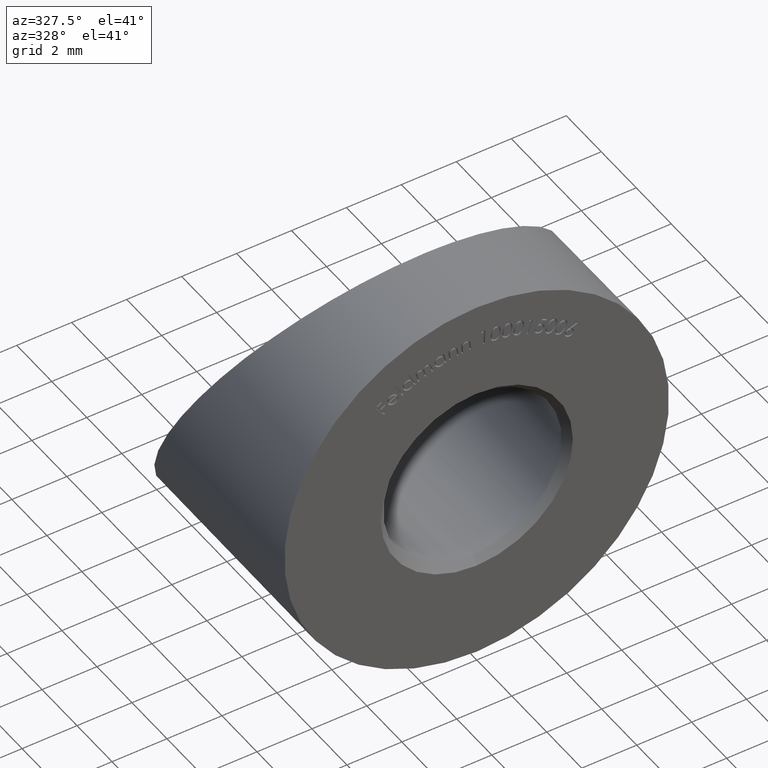
[diagram: clean part render]
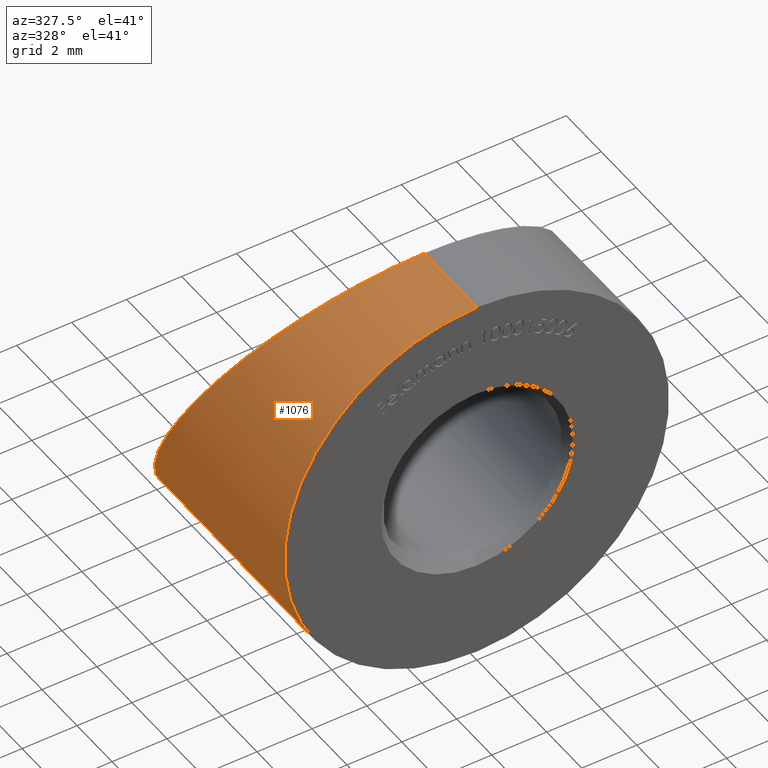
[diagram: same view with one face highlighted and labeled with its STEP entity id]
A machine part, auxiliary view. The second image highlights one B-rep face of the part: STEP entity #1076.
In plain terms, the highlighted cylindrical surface (partial cylindrical patch) has radius 7 mm, axis along (-0, -1, -0).
Its self-contained STEP definition (entity closure, byte-faithful):
#536 = EDGE_CURVE ( 'NONE', #3906, #5110, #3674, .T. ) ;
#1059 = ORIENTED_EDGE ( 'NONE', *, *, #2031, .T. ) ;
#1076 = ADVANCED_FACE ( 'NONE', ( #12938 ), #7727, .T. ) ;
#1487 = DIRECTION ( 'NONE',  ( 0.0000000000000000000, 1.000000000000000000, 0.0000000000000000000 ) ) ;
#1510 = CARTESIAN_POINT ( 'NONE',  ( -14.00000000000000200, 2.999999999999996400, 7.000000000000000900 ) ) ;
#1643 = AXIS2_PLACEMENT_3D ( 'NONE', #6378, #10565, #12946 ) ;
#2031 = EDGE_CURVE ( 'NONE', #5110, #10557, #5237, .T. ) ;
#2284 = DIRECTION ( 'NONE',  ( -0.0000000000000000000, -1.000000000000000000, -0.0000000000000000000 ) ) ;
#2507 = CIRCLE ( 'NONE', #7086, 7.000000000000000000 ) ;
#2629 = LINE ( 'NONE', #8526, #13405 ) ;
#3113 = CARTESIAN_POINT ( 'NONE',  ( 0.0000000000000000000, 15.00000000000000000, -7.000000000000000000 ) ) ;
#3579 = DIRECTION ( 'NONE',  ( 0.0000000000000000000, 0.0000000000000000000, 1.000000000000000000 ) ) ;
#3603 = CARTESIAN_POINT ( 'NONE',  ( -14.00000000000000200, 10.60000000000000300, -7.000000000000000000 ) ) ;
#3639 = EDGE_CURVE ( 'NONE', #3906, #11282, #2629, .T. ) ;
#3674 =( BOUNDED_CURVE ( )  B_SPLINE_CURVE ( 3, ( #4636, #1510, #3603, #11897 ),
 .UNSPECIFIED., .F., .F. ) 
 B_SPLINE_CURVE_WITH_KNOTS ( ( 4, 4 ),
 ( 0.0000000000000000000, 3.141592653589793100 ),
 .UNSPECIFIED. ) 
 CURVE ( )  GEOMETRIC_REPRESENTATION_ITEM ( )  RATIONAL_B_SPLINE_CURVE ( ( 1.000000000000000000, 0.3333333333333333700, 0.3333333333333333700, 1.000000000000000000 ) ) 
 REPRESENTATION_ITEM ( '' )  );
#3796 = ORIENTED_EDGE ( 'NONE', *, *, #536, .T. ) ;
#3906 = VERTEX_POINT ( 'NONE', #13491 ) ;
#4636 = CARTESIAN_POINT ( 'NONE',  ( 8.572527594031473200E-016, 2.999999999999995600, 7.000000000000000000 ) ) ;
#5110 = VERTEX_POINT ( 'NONE', #9233 ) ;
#5237 = LINE ( 'NONE', #3113, #10162 ) ;
#5345 = EDGE_CURVE ( 'NONE', #10557, #11282, #2507, .T. ) ;
#6378 = CARTESIAN_POINT ( 'NONE',  ( 0.0000000000000000000, 15.00000000000000000, 0.0000000000000000000 ) ) ;
#7023 = EDGE_LOOP ( 'NONE', ( #8111, #3796, #1059, #13527 ) ) ;
#7086 = AXIS2_PLACEMENT_3D ( 'NONE', #11878, #1487, #3579 ) ;
#7438 = CARTESIAN_POINT ( 'NONE',  ( 8.572527594031473200E-016, 0.0000000000000000000, 7.000000000000000000 ) ) ;
#7727 = CYLINDRICAL_SURFACE ( 'NONE', #1643, 7.000000000000000000 ) ;
#8111 = ORIENTED_EDGE ( 'NONE', *, *, #3639, .F. ) ;
#8432 = CARTESIAN_POINT ( 'NONE',  ( 0.0000000000000000000, 0.0000000000000000000, -7.000000000000000000 ) ) ;
#8526 = CARTESIAN_POINT ( 'NONE',  ( 8.572527594031473200E-016, 15.00000000000000000, 7.000000000000000000 ) ) ;
#9233 = CARTESIAN_POINT ( 'NONE',  ( 0.0000000000000000000, 10.60000000000000500, -7.000000000000000000 ) ) ;
#9541 = DIRECTION ( 'NONE',  ( -0.0000000000000000000, -1.000000000000000000, -0.0000000000000000000 ) ) ;
#10162 = VECTOR ( 'NONE', #9541, 1000.000000000000000 ) ;
#10557 = VERTEX_POINT ( 'NONE', #8432 ) ;
#10565 = DIRECTION ( 'NONE',  ( -0.0000000000000000000, -1.000000000000000000, -0.0000000000000000000 ) ) ;
#11282 = VERTEX_POINT ( 'NONE', #7438 ) ;
#11878 = CARTESIAN_POINT ( 'NONE',  ( 0.0000000000000000000, 0.0000000000000000000, 0.0000000000000000000 ) ) ;
#11897 = CARTESIAN_POINT ( 'NONE',  ( 0.0000000000000000000, 10.60000000000000500, -7.000000000000000000 ) ) ;
#12938 = FACE_OUTER_BOUND ( 'NONE', #7023, .T. ) ;
#12946 = DIRECTION ( 'NONE',  ( 0.0000000000000000000, 0.0000000000000000000, -1.000000000000000000 ) ) ;
#13405 = VECTOR ( 'NONE', #2284, 1000.000000000000000 ) ;
#13491 = CARTESIAN_POINT ( 'NONE',  ( 8.572527594031473200E-016, 2.999999999999995600, 7.000000000000000000 ) ) ;
#13527 = ORIENTED_EDGE ( 'NONE', *, *, #5345, .T. ) ;